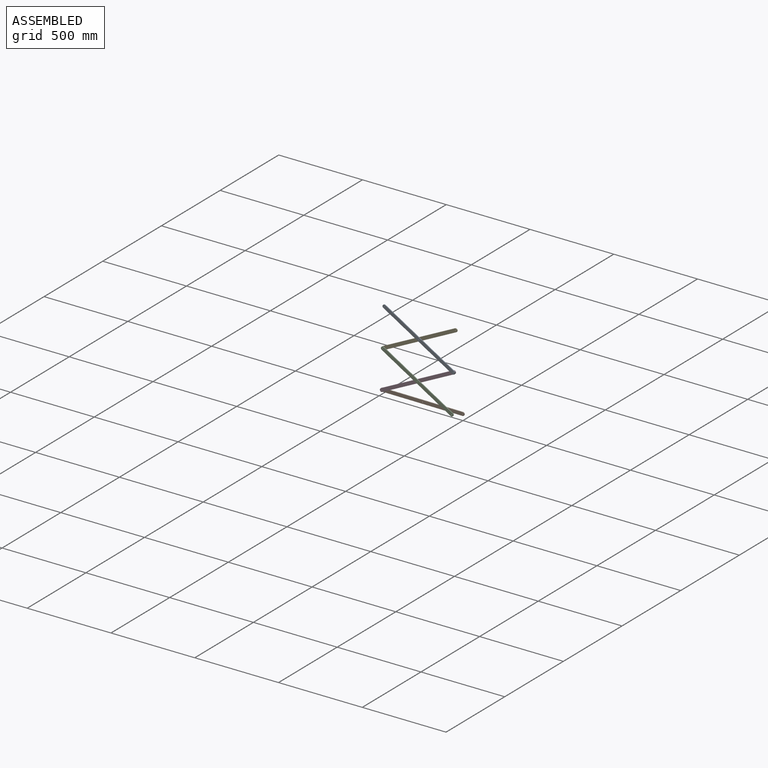
[diagram: assembled view]
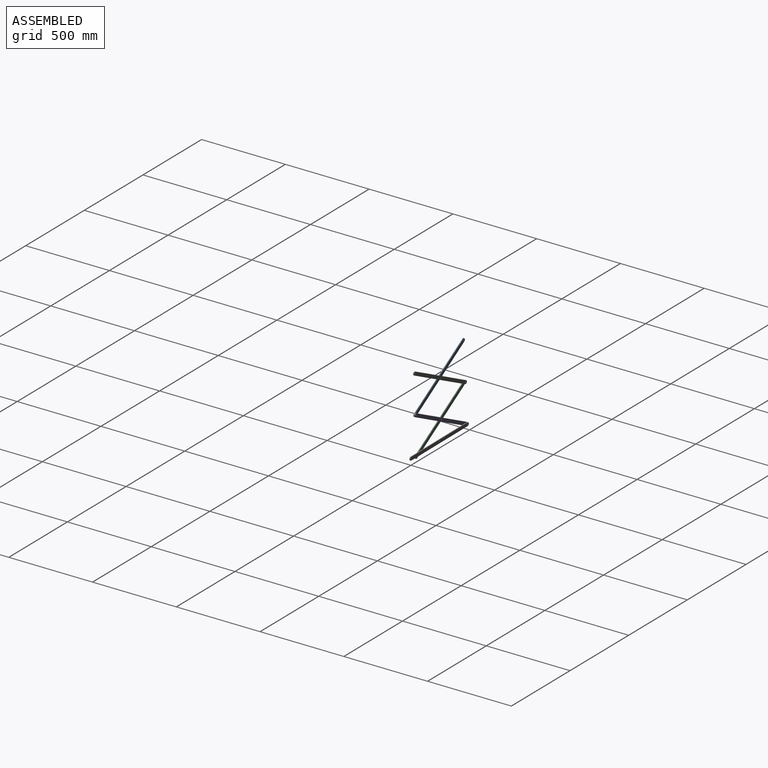
[diagram: assembled view, second angle]
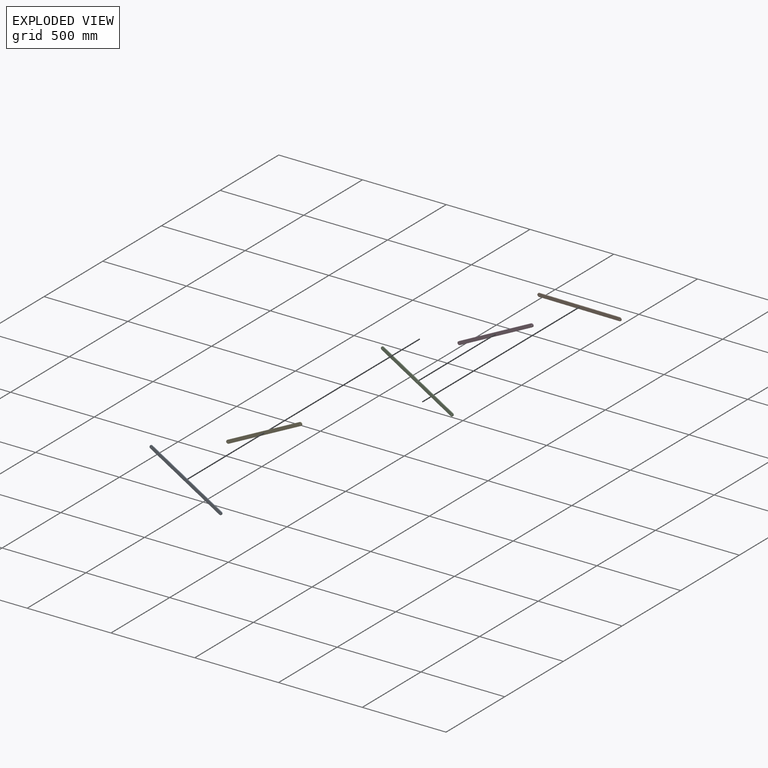
[diagram: exploded view]
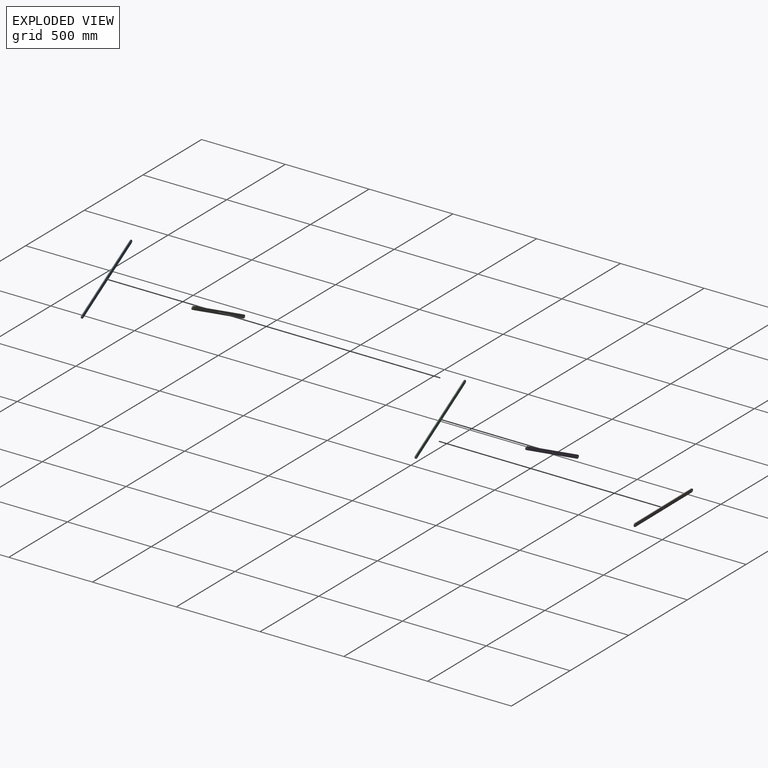
[diagram: exploded view, second angle]
ASSEMBLY  parts=5 mates=5
PART A: 9 faces, bbox 500x5x20 mm
  f0: cylinder r=10mm len=20mm, axis (0,-1,0), area 157.1mm2, adj f1,f6,f7,f8
  f1: plane 480x5mm, normal (0,0,1), area 2400mm2, adj f0,f2,f7,f8
  f2: cylinder r=10mm len=20mm, axis (0,-1,0), area 157.1mm2, adj f1,f6,f7,f8
  f3: cylinder r=2.5mm len=5mm, axis (0,-1,0), area 78.5mm2, adj f7,f8
  f4: cylinder r=2.5mm len=5mm, axis (0,-1,0), area 78.5mm2, adj f7,f8
  f5: cylinder r=2.5mm len=5mm, axis (0,-1,0), area 78.5mm2, adj f7,f8
  f6: plane 480x5mm, normal (0,0,-1), area 2400mm2, adj f0,f2,f7,f8
  f7: plane 500x20mm, normal (0,1,0), area 9855.3mm2, adj f0,f1,f2,f3,f4,f5,f6
  f8: plane 500x20mm, normal (0,-1,0), area 9855.3mm2, adj f0,f1,f2,f3,f4,f5,f6
PART B: same geometry as A
PART C: same geometry as A
PART D: same geometry as A
PART E: same geometry as A
PLACE A rot(axis=(0,1,0),30.9deg) t=(-255.36,-10,336.47)mm
PLACE B rot(axis=(0,1,0),0.3deg) t=(-240.59,0,0.66)mm
PLACE C rot(axis=(0,1,0),30.9deg) t=(-265.04,-10,107.57)mm
PLACE D rot(axis=(0,-1,0),26.1deg) t=(-265.04,-5,107.57)mm
PLACE E rot(axis=(0,-1,0),26.1deg) t=(-255.36,-5,336.47)mm
MATE revolute A.f5 <-> D.f5  axis (0,1,0) through (-49.49,-7.5,213.11)mm
MATE revolute E.f4 <-> C.f4  axis (0,-1,0) through (-470.91,-7.5,230.93)mm
MATE revolute D.f4 <-> B.f2  axis (0,-1,0) through (-480.59,-7.5,2.03)mm
MATE revolute E.f3 <-> A.f3  axis (0,-1,0) through (-255.36,-7.5,336.47)mm
MATE revolute C.f3 <-> D.f3  axis (0,-1,0) through (-265.04,-12.5,107.57)mm
